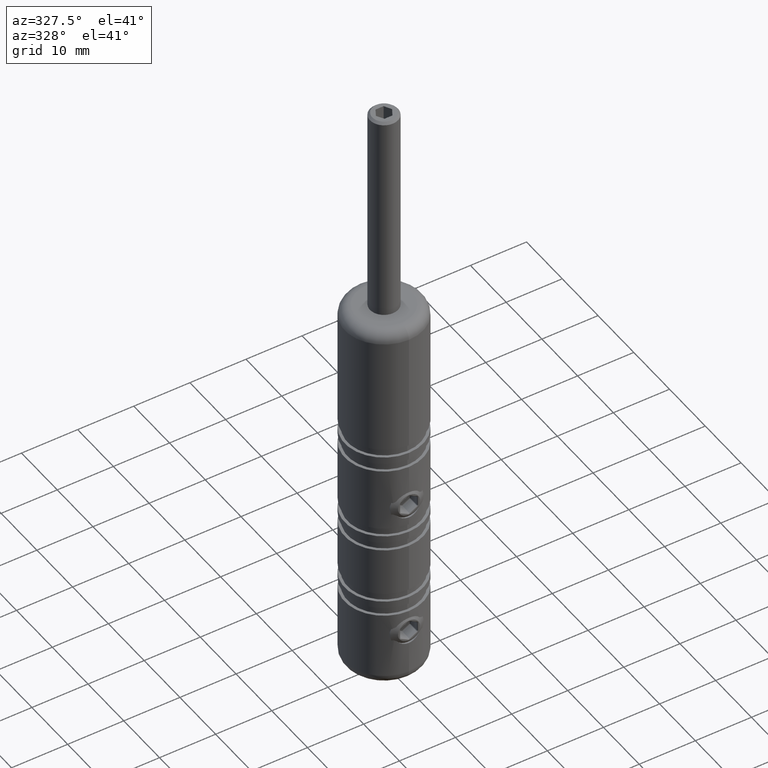
[diagram: clean part render]
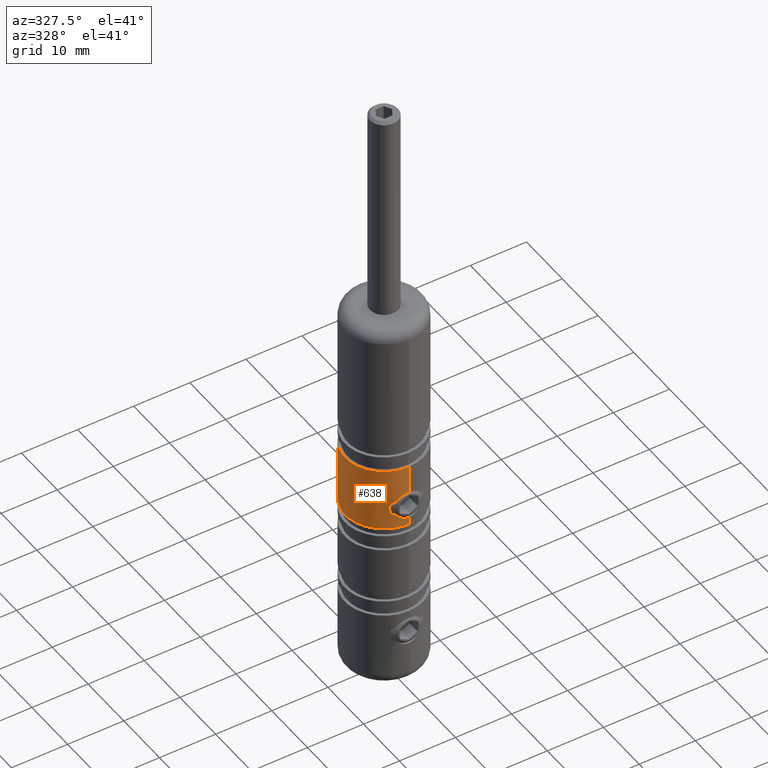
[diagram: same view with one face highlighted and labeled with its STEP entity id]
A machine part, auxiliary view. The second image highlights one B-rep face of the part: STEP entity #638.
In plain terms, the highlighted cylindrical surface (partial cylindrical patch) has radius 7 mm, axis along (0, 0, 1).
Its self-contained STEP definition (entity closure, byte-faithful):
#241 = VECTOR ( 'NONE', #5281, 1000.000000000000000 ) ;
#534 = EDGE_CURVE ( 'NONE', #14760, #3796, #1307, .T. ) ;
#638 = ADVANCED_FACE ( 'NONE', ( #8188 ), #9618, .T. ) ;
#803 = ORIENTED_EDGE ( 'NONE', *, *, #9467, .T. ) ;
#956 = DIRECTION ( 'NONE',  ( 0.0000000000000000000, -1.000000000000000000, 6.195440985631470100E-017 ) ) ;
#993 = CARTESIAN_POINT ( 'NONE',  ( -1.798192403797702300E-019, -6.999999999999982200, 2.649999999999993200 ) ) ;
#1220 = CARTESIAN_POINT ( 'NONE',  ( -2.499912498922765900, -6.538381872178707300, -0.01594477283448985900 ) ) ;
#1307 = LINE ( 'NONE', #13839, #4357 ) ;
#2490 = DIRECTION ( 'NONE',  ( 0.0000000000000000000, -1.000000000000000000, 0.0000000000000000000 ) ) ;
#2793 = CARTESIAN_POINT ( 'NONE',  ( 8.572527594031448500E-016, 6.999999999999977800, 7.699999999999998400 ) ) ;
#3072 = EDGE_CURVE ( 'NONE', #10222, #7370, #13878, .T. ) ;
#3411 = DIRECTION ( 'NONE',  ( -0.0000000000000000000, 5.987083850887820200E-017, 1.000000000000000000 ) ) ;
#3428 = EDGE_LOOP ( 'NONE', ( #11608, #803, #7369, #14807, #4034, #4374 ) ) ;
#3581 = CARTESIAN_POINT ( 'NONE',  ( 0.0000000000000000000, -6.999999999999982200, -2.350000000000001400 ) ) ;
#3595 = CARTESIAN_POINT ( 'NONE',  ( -1.652205860208955500, -6.803257230850213100, 2.033237980439071000 ) ) ;
#3713 = CARTESIAN_POINT ( 'NONE',  ( -0.6517530939081327400, -6.971454749619991500, -2.269109380965464800 ) ) ;
#3766 = CARTESIAN_POINT ( 'NONE',  ( -0.8102109664719896500, -6.954611786350691100, 2.520677416910019500 ) ) ;
#3796 = VERTEX_POINT ( 'NONE', #3581 ) ;
#3930 = CARTESIAN_POINT ( 'NONE',  ( 0.0000000000000000000, -6.999999999999984000, -3.700000000000008600 ) ) ;
#3966 = CARTESIAN_POINT ( 'NONE',  ( 0.0000000000000000000, -6.999999999999980500, 35.00000000000000000 ) ) ;
#4034 = ORIENTED_EDGE ( 'NONE', *, *, #5667, .T. ) ;
#4357 = VECTOR ( 'NONE', #11344, 1000.000000000000000 ) ;
#4374 = ORIENTED_EDGE ( 'NONE', *, *, #3072, .F. ) ;
#4829 = VERTEX_POINT ( 'NONE', #4936 ) ;
#4913 = CARTESIAN_POINT ( 'NONE',  ( -1.527369289322315900, -6.832725277042823300, 2.135846073934975400 ) ) ;
#4936 = CARTESIAN_POINT ( 'NONE',  ( 8.572527594031448500E-016, 6.999999999999978700, -3.700000000000009100 ) ) ;
#4976 = CARTESIAN_POINT ( 'NONE',  ( -2.483487897825190900, -6.544728749842668100, 0.4804985421295853700 ) ) ;
#5085 = CARTESIAN_POINT ( 'NONE',  ( -1.113545017333396700, -6.912546105698077700, -2.094287614806861000 ) ) ;
#5139 = LINE ( 'NONE', #10052, #5337 ) ;
#5203 = DIRECTION ( 'NONE',  ( -0.0000000000000000000, 5.987083850887820200E-017, 1.000000000000000000 ) ) ;
#5281 = DIRECTION ( 'NONE',  ( -0.0000000000000000000, 5.987083850887820200E-017, 1.000000000000000000 ) ) ;
#5337 = VECTOR ( 'NONE', #3411, 1000.000000000000000 ) ;
#5667 = EDGE_CURVE ( 'NONE', #14077, #7370, #10831, .T. ) ;
#6258 = CARTESIAN_POINT ( 'NONE',  ( -2.370245848837739800, -6.586829527406433000, -0.6614053658334665400 ) ) ;
#6288 = CARTESIAN_POINT ( 'NONE',  ( 0.0000000000000000000, -1.634473891292375600E-015, 7.699999999999998400 ) ) ;
#7369 = ORIENTED_EDGE ( 'NONE', *, *, #534, .T. ) ;
#7370 = VERTEX_POINT ( 'NONE', #16699 ) ;
#7429 = B_SPLINE_CURVE_WITH_KNOTS ( 'NONE', 3,
 ( #7667, #11512, #16657, #3713, #15277, #5085, #10133, #14138, #12748, #16824, #15456, #6258, #13952, #8983, #1220, #7444, #4976, #7611, #16595, #14073, #14013, #15397, #11396, #3595, #4913, #11563, #15337, #3766, #7557, #15617, #16868, #10529 ),
 .UNSPECIFIED., .F., .F.,
 ( 4, 2, 2, 2, 2, 2, 2, 2, 2, 2, 2, 2, 2, 2, 2, 4 ),
 ( 0.0000000000000000000, 0.0004926113832447588500, 0.0009852227664895177000, 0.001477834149734276800, 0.001970445532979035400, 0.002955668299468552200, 0.003448279682713311100, 0.003940891065958069100, 0.004433502449202827500, 0.004926113832447586800, 0.005418725215692345200, 0.005911336598937103600, 0.006403947982181863700, 0.006896559365426622100, 0.007389170748671381400, 0.007881782131916139800 ),
 .UNSPECIFIED. ) ;
#7444 = CARTESIAN_POINT ( 'NONE',  ( -2.500086800412541600, -6.538315226349094900, 0.3132977657665060900 ) ) ;
#7557 = CARTESIAN_POINT ( 'NONE',  ( -0.6540777655606432300, -6.971270671019898800, 2.568582956134533000 ) ) ;
#7611 = CARTESIAN_POINT ( 'NONE',  ( -2.418957270324506600, -6.568853193062357900, 0.8023704080797742200 ) ) ;
#7667 = CARTESIAN_POINT ( 'NONE',  ( 0.0000000000000000000, -6.999999999999982200, -2.350000000000001400 ) ) ;
#8188 = FACE_OUTER_BOUND ( 'NONE', #3428, .T. ) ;
#8948 = EDGE_CURVE ( 'NONE', #3796, #14077, #7429, .T. ) ;
#8983 = CARTESIAN_POINT ( 'NONE',  ( -2.483724230319996000, -6.544639652285172600, -0.1790933315932443600 ) ) ;
#9467 = EDGE_CURVE ( 'NONE', #4829, #14760, #15873, .T. ) ;
#9618 = CYLINDRICAL_SURFACE ( 'NONE', #13992, 6.999999999999980500 ) ;
#10052 = CARTESIAN_POINT ( 'NONE',  ( 8.572527594031448500E-016, 6.999999999999980500, 35.00000000000000000 ) ) ;
#10133 = CARTESIAN_POINT ( 'NONE',  ( -1.256655774511398000, -6.887662783791753000, -2.017343951924943200 ) ) ;
#10222 = VERTEX_POINT ( 'NONE', #2793 ) ;
#10428 = DIRECTION ( 'NONE',  ( 0.0000000000000000000, -1.000000000000000000, 0.0000000000000000000 ) ) ;
#10529 = CARTESIAN_POINT ( 'NONE',  ( -1.798192403797702300E-019, -6.999999999999982200, 2.649999999999993200 ) ) ;
#10831 = LINE ( 'NONE', #3966, #241 ) ;
#11344 = DIRECTION ( 'NONE',  ( -0.0000000000000000000, 5.987083850887820200E-017, 1.000000000000000000 ) ) ;
#11396 = CARTESIAN_POINT ( 'NONE',  ( -1.881945351263202500, -6.743320758237986800, 1.803678079414452000 ) ) ;
#11512 = CARTESIAN_POINT ( 'NONE',  ( -0.1666654329739605500, -6.999999999999982200, -2.350000000000001400 ) ) ;
#11563 = CARTESIAN_POINT ( 'NONE',  ( -1.257255898599280300, -6.887546679547236600, 2.316967738745832100 ) ) ;
#11608 = ORIENTED_EDGE ( 'NONE', *, *, #16650, .F. ) ;
#11746 = AXIS2_PLACEMENT_3D ( 'NONE', #15312, #15197, #956 ) ;
#12146 = AXIS2_PLACEMENT_3D ( 'NONE', #6288, #15433, #2490 ) ;
#12748 = CARTESIAN_POINT ( 'NONE',  ( -1.654417258820098300, -6.802708637123692400, -1.731231628040283100 ) ) ;
#13839 = CARTESIAN_POINT ( 'NONE',  ( 0.0000000000000000000, -6.999999999999980500, 35.00000000000000000 ) ) ;
#13878 = CIRCLE ( 'NONE', #12146, 6.999999999999979600 ) ;
#13952 = CARTESIAN_POINT ( 'NONE',  ( -2.418985510736147800, -6.568843378357456700, -0.5024550344861887800 ) ) ;
#13992 = AXIS2_PLACEMENT_3D ( 'NONE', #16774, #5203, #10428 ) ;
#14013 = CARTESIAN_POINT ( 'NONE',  ( -2.167036636351883600, -6.656792451069414100, 1.407076040401511200 ) ) ;
#14073 = CARTESIAN_POINT ( 'NONE',  ( -2.244461535863836200, -6.630754201568819000, 1.263364886514609400 ) ) ;
#14077 = VERTEX_POINT ( 'NONE', #993 ) ;
#14138 = CARTESIAN_POINT ( 'NONE',  ( -1.527415625474456000, -6.832721556297993700, -1.835841143851880500 ) ) ;
#14760 = VERTEX_POINT ( 'NONE', #3930 ) ;
#14807 = ORIENTED_EDGE ( 'NONE', *, *, #8948, .T. ) ;
#15197 = DIRECTION ( 'NONE',  ( -0.0000000000000000000, 5.987083850887820200E-017, 1.000000000000000000 ) ) ;
#15277 = CARTESIAN_POINT ( 'NONE',  ( -0.8113121982069012600, -6.954498449641809200, -2.220354809019988300 ) ) ;
#15312 = CARTESIAN_POINT ( 'NONE',  ( 0.0000000000000000000, -2.317001450293587300E-015, -3.700000000000009100 ) ) ;
#15337 = CARTESIAN_POINT ( 'NONE',  ( -1.111092826571013400, -6.912925548549028000, 2.395445602988652400 ) ) ;
#15397 = CARTESIAN_POINT ( 'NONE',  ( -1.986513075921680000, -6.712875637094597000, 1.676451359799915100 ) ) ;
#15433 = DIRECTION ( 'NONE',  ( -0.0000000000000000000, 5.987083850887820200E-017, 1.000000000000000000 ) ) ;
#15456 = CARTESIAN_POINT ( 'NONE',  ( -2.182616585610912100, -6.652348402511699500, -1.111729387293352700 ) ) ;
#15617 = CARTESIAN_POINT ( 'NONE',  ( -0.3297201420311631200, -6.994120181978715300, 2.633675878017138300 ) ) ;
#15873 = CIRCLE ( 'NONE', #11746, 6.999999999999981300 ) ;
#16595 = CARTESIAN_POINT ( 'NONE',  ( -2.371248968516985300, -6.586477601639736600, 0.9589297162319370100 ) ) ;
#16650 = EDGE_CURVE ( 'NONE', #4829, #10222, #5139, .T. ) ;
#16657 = CARTESIAN_POINT ( 'NONE',  ( -0.3302835225427129300, -6.994060066667623600, -2.333502584502524300 ) ) ;
#16699 = CARTESIAN_POINT ( 'NONE',  ( 0.0000000000000000000, -6.999999999999981300, 7.699999999999998400 ) ) ;
#16774 = CARTESIAN_POINT ( 'NONE',  ( 0.0000000000000000000, -3.851859888774471700E-031, 35.00000000000000000 ) ) ;
#16824 = CARTESIAN_POINT ( 'NONE',  ( -1.997143572992787100, -6.713209561779717800, -1.388159018871960400 ) ) ;
#16868 = CARTESIAN_POINT ( 'NONE',  ( -0.1641597229444208300, -6.999999999999981300, 2.649999999999992800 ) ) ;